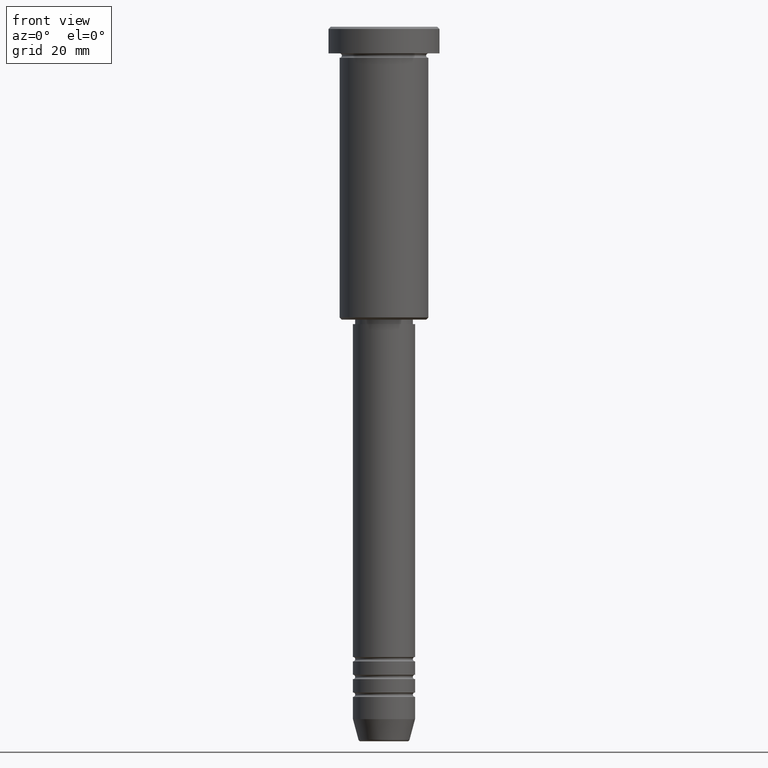
[diagram: clean part render]
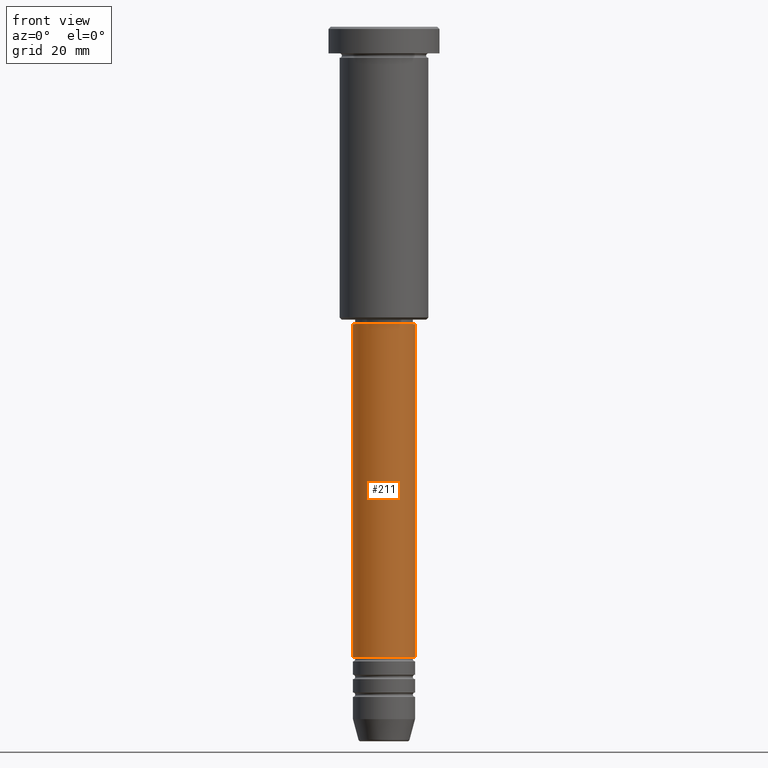
[diagram: same view with one face highlighted and labeled with its STEP entity id]
A machine part, front view. The second image highlights one B-rep face of the part: STEP entity #211.
In plain terms, the highlighted cylindrical surface (edge-blend (fillet) strip) has radius 7 mm, axis along (-0, -0, 1).
Its self-contained STEP definition (entity closure, byte-faithful):
#7 = VERTEX_POINT ( 'NONE', #535 ) ;
#83 = DIRECTION ( 'NONE',  ( -0.000000000000000000, -0.000000000000000000, 1.000000000000000000 ) ) ;
#84 = EDGE_CURVE ( 'NONE', #344, #1072, #461, .T. ) ;
#86 = CARTESIAN_POINT ( 'NONE',  ( -7.000000000000000888, 8.572527594031474176E-16, 0.000000000000000000 ) ) ;
#89 = DIRECTION ( 'NONE',  ( -0.000000000000000000, -0.000000000000000000, 1.000000000000000000 ) ) ;
#116 = DIRECTION ( 'NONE',  ( -0.000000000000000000, -0.000000000000000000, 1.000000000000000000 ) ) ;
#170 = EDGE_CURVE ( 'NONE', #333, #7, #893, .T. ) ;
#194 = AXIS2_PLACEMENT_3D ( 'NONE', #992, #1088, #1098 ) ;
#209 = CARTESIAN_POINT ( 'NONE',  ( 7.000000000000000888, 0.000000000000000000, -67.00000000000002842 ) ) ;
#211 = ADVANCED_FACE ( 'NONE', ( #594 ), #1158, .T. ) ;
#254 = CARTESIAN_POINT ( 'NONE',  ( 0.000000000000000000, 0.000000000000000000, -67.00000000000002842 ) ) ;
#257 = AXIS2_PLACEMENT_3D ( 'NONE', #254, #89, #625 ) ;
#258 = AXIS2_PLACEMENT_3D ( 'NONE', #497, #785, #1054 ) ;
#333 = VERTEX_POINT ( 'NONE', #1119 ) ;
#344 = VERTEX_POINT ( 'NONE', #670 ) ;
#365 = EDGE_LOOP ( 'NONE', ( #424, #515, #444, #431 ) ) ;
#376 = CARTESIAN_POINT ( 'NONE',  ( 7.000000000000000888, 0.000000000000000000, 0.000000000000000000 ) ) ;
#424 = ORIENTED_EDGE ( 'NONE', *, *, #932, .F. ) ;
#431 = ORIENTED_EDGE ( 'NONE', *, *, #84, .F. ) ;
#444 = ORIENTED_EDGE ( 'NONE', *, *, #595, .T. ) ;
#461 = CIRCLE ( 'NONE', #257, 7.000000000000000888 ) ;
#497 = CARTESIAN_POINT ( 'NONE',  ( 0.000000000000000000, 0.000000000000000000, 0.000000000000000000 ) ) ;
#515 = ORIENTED_EDGE ( 'NONE', *, *, #170, .T. ) ;
#535 = CARTESIAN_POINT ( 'NONE',  ( 7.000000000000000888, 0.000000000000000000, -141.9999999999999147 ) ) ;
#594 = FACE_OUTER_BOUND ( 'NONE', #365, .T. ) ;
#595 = EDGE_CURVE ( 'NONE', #7, #1072, #1135, .T. ) ;
#625 = DIRECTION ( 'NONE',  ( 1.000000000000000000, 0.000000000000000000, 0.000000000000000000 ) ) ;
#670 = CARTESIAN_POINT ( 'NONE',  ( -7.000000000000000888, 8.572527594031474176E-16, -67.00000000000002842 ) ) ;
#785 = DIRECTION ( 'NONE',  ( -0.000000000000000000, -0.000000000000000000, 1.000000000000000000 ) ) ;
#893 = CIRCLE ( 'NONE', #194, 7.000000000000000888 ) ;
#932 = EDGE_CURVE ( 'NONE', #333, #344, #1181, .T. ) ;
#992 = CARTESIAN_POINT ( 'NONE',  ( 0.000000000000000000, 0.000000000000000000, -141.9999999999999147 ) ) ;
#996 = VECTOR ( 'NONE', #116, 1000.000000000000000 ) ;
#1013 = VECTOR ( 'NONE', #83, 1000.000000000000000 ) ;
#1054 = DIRECTION ( 'NONE',  ( 1.000000000000000000, 0.000000000000000000, 0.000000000000000000 ) ) ;
#1072 = VERTEX_POINT ( 'NONE', #209 ) ;
#1088 = DIRECTION ( 'NONE',  ( -0.000000000000000000, -0.000000000000000000, 1.000000000000000000 ) ) ;
#1098 = DIRECTION ( 'NONE',  ( 1.000000000000000000, 0.000000000000000000, 0.000000000000000000 ) ) ;
#1119 = CARTESIAN_POINT ( 'NONE',  ( -7.000000000000000888, 8.572527594031474176E-16, -141.9999999999999147 ) ) ;
#1135 = LINE ( 'NONE', #376, #996 ) ;
#1158 = CYLINDRICAL_SURFACE ( 'NONE', #258, 7.000000000000000888 ) ;
#1181 = LINE ( 'NONE', #86, #1013 ) ;